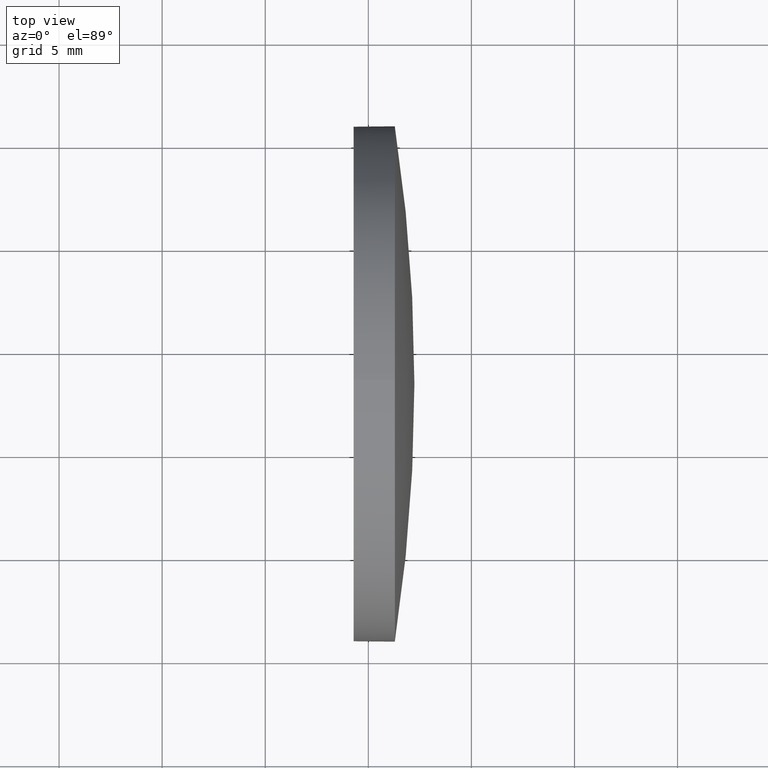
[diagram: clean part render]
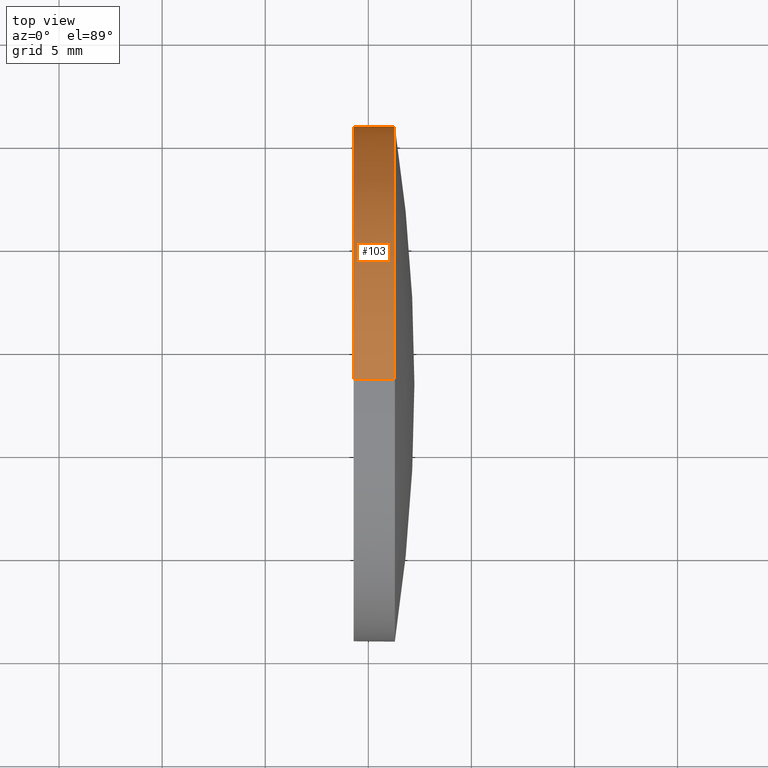
[diagram: same view with one face highlighted and labeled with its STEP entity id]
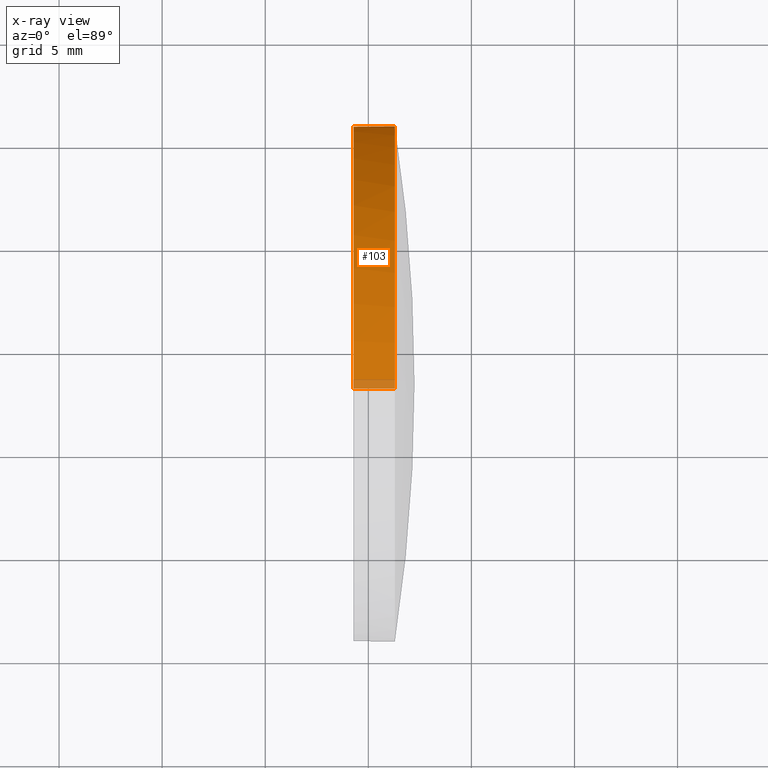
[diagram: x-ray of the same camera — body ghosted, the highlighted face saturated]
A machine part, top view. The second image highlights one B-rep face of the part: STEP entity #103.
The next image is the same camera in x-ray: the body ghosted, the highlighted face saturated — about 3% of this face is hidden behind the body in this view.
In plain terms, the highlighted cylindrical surface (partial cylindrical patch) has radius 12.5 mm, axis along (-1, -0, -0).
Its self-contained STEP definition (entity closure, byte-faithful):
#9 = EDGE_LOOP ( 'NONE', ( #135, #13, #65, #50, #102 ) ) ;
#11 = EDGE_CURVE ( 'NONE', #112, #133, #66, .T. ) ;
#12 = AXIS2_PLACEMENT_3D ( 'NONE', #84, #26, #41 ) ;
#13 = ORIENTED_EDGE ( 'NONE', *, *, #11, .T. ) ;
#14 = CARTESIAN_POINT ( 'NONE',  ( 481.2856830455023700, 90.84035694524031600, 1.530808498934187800E-015 ) ) ;
#16 = DIRECTION ( 'NONE',  ( -1.000000000000000000, -0.0000000000000000000, -0.0000000000000000000 ) ) ;
#17 = DIRECTION ( 'NONE',  ( -1.000000000000000000, -0.0000000000000000000, -0.0000000000000000000 ) ) ;
#23 = AXIS2_PLACEMENT_3D ( 'NONE', #160, #107, #136 ) ;
#24 = CIRCLE ( 'NONE', #177, 12.49999999999999600 ) ;
#26 = DIRECTION ( 'NONE',  ( -1.000000000000000000, -0.0000000000000000000, -0.0000000000000000000 ) ) ;
#30 = DIRECTION ( 'NONE',  ( 0.0000000000000000000, 0.0000000000000000000, 1.000000000000000000 ) ) ;
#31 = DIRECTION ( 'NONE',  ( -1.000000000000000000, -0.0000000000000000000, -0.0000000000000000000 ) ) ;
#41 = DIRECTION ( 'NONE',  ( 0.0000000000000000000, 0.0000000000000000000, 1.000000000000000000 ) ) ;
#45 = DIRECTION ( 'NONE',  ( -1.000000000000000000, -0.0000000000000000000, -0.0000000000000000000 ) ) ;
#50 = ORIENTED_EDGE ( 'NONE', *, *, #186, .F. ) ;
#52 = CARTESIAN_POINT ( 'NONE',  ( 479.2856830455023700, 78.34035694524027300, -12.49999999999999600 ) ) ;
#54 = CARTESIAN_POINT ( 'NONE',  ( 479.2856830455023700, 78.34035694524027300, 12.49999999999999600 ) ) ;
#61 = CIRCLE ( 'NONE', #12, 12.49999999999999600 ) ;
#63 = FACE_OUTER_BOUND ( 'NONE', #9, .T. ) ;
#65 = ORIENTED_EDGE ( 'NONE', *, *, #134, .F. ) ;
#66 = LINE ( 'NONE', #185, #106 ) ;
#68 = CARTESIAN_POINT ( 'NONE',  ( 481.2856830455023700, 78.34035694524027300, 0.0000000000000000000 ) ) ;
#69 = DIRECTION ( 'NONE',  ( 0.0000000000000000000, 0.0000000000000000000, 1.000000000000000000 ) ) ;
#74 = CARTESIAN_POINT ( 'NONE',  ( 481.2856830455023700, 78.34035694524027300, 12.49999999999999600 ) ) ;
#82 = VERTEX_POINT ( 'NONE', #54 ) ;
#84 = CARTESIAN_POINT ( 'NONE',  ( 481.2856830455023700, 78.34035694524027300, 0.0000000000000000000 ) ) ;
#89 = EDGE_CURVE ( 'NONE', #140, #101, #61, .T. ) ;
#101 = VERTEX_POINT ( 'NONE', #14 ) ;
#102 = ORIENTED_EDGE ( 'NONE', *, *, #89, .T. ) ;
#103 = ADVANCED_FACE ( 'NONE', ( #63 ), #148, .T. ) ;
#106 = VECTOR ( 'NONE', #17, 1000.000000000000000 ) ;
#107 = DIRECTION ( 'NONE',  ( -1.000000000000000000, -0.0000000000000000000, -0.0000000000000000000 ) ) ;
#111 = EDGE_CURVE ( 'NONE', #101, #112, #150, .T. ) ;
#112 = VERTEX_POINT ( 'NONE', #138 ) ;
#117 = VECTOR ( 'NONE', #45, 1000.000000000000000 ) ;
#133 = VERTEX_POINT ( 'NONE', #52 ) ;
#134 = EDGE_CURVE ( 'NONE', #82, #133, #24, .T. ) ;
#135 = ORIENTED_EDGE ( 'NONE', *, *, #111, .T. ) ;
#136 = DIRECTION ( 'NONE',  ( 0.0000000000000000000, 0.0000000000000000000, 1.000000000000000000 ) ) ;
#138 = CARTESIAN_POINT ( 'NONE',  ( 481.2856830455023700, 78.34035694524027300, -12.49999999999999600 ) ) ;
#140 = VERTEX_POINT ( 'NONE', #74 ) ;
#146 = AXIS2_PLACEMENT_3D ( 'NONE', #68, #16, #69 ) ;
#148 = CYLINDRICAL_SURFACE ( 'NONE', #23, 12.49999999999999600 ) ;
#150 = CIRCLE ( 'NONE', #146, 12.49999999999999600 ) ;
#159 = LINE ( 'NONE', #162, #117 ) ;
#160 = CARTESIAN_POINT ( 'NONE',  ( 477.2565754670653700, 78.34035694524027300, 0.0000000000000000000 ) ) ;
#161 = CARTESIAN_POINT ( 'NONE',  ( 479.2856830455023700, 78.34035694524027300, 0.0000000000000000000 ) ) ;
#162 = CARTESIAN_POINT ( 'NONE',  ( 477.2565754670653700, 78.34035694524027300, 12.49999999999999600 ) ) ;
#177 = AXIS2_PLACEMENT_3D ( 'NONE', #161, #31, #30 ) ;
#185 = CARTESIAN_POINT ( 'NONE',  ( 477.2565754670653700, 78.34035694524027300, -12.49999999999999600 ) ) ;
#186 = EDGE_CURVE ( 'NONE', #140, #82, #159, .T. ) ;